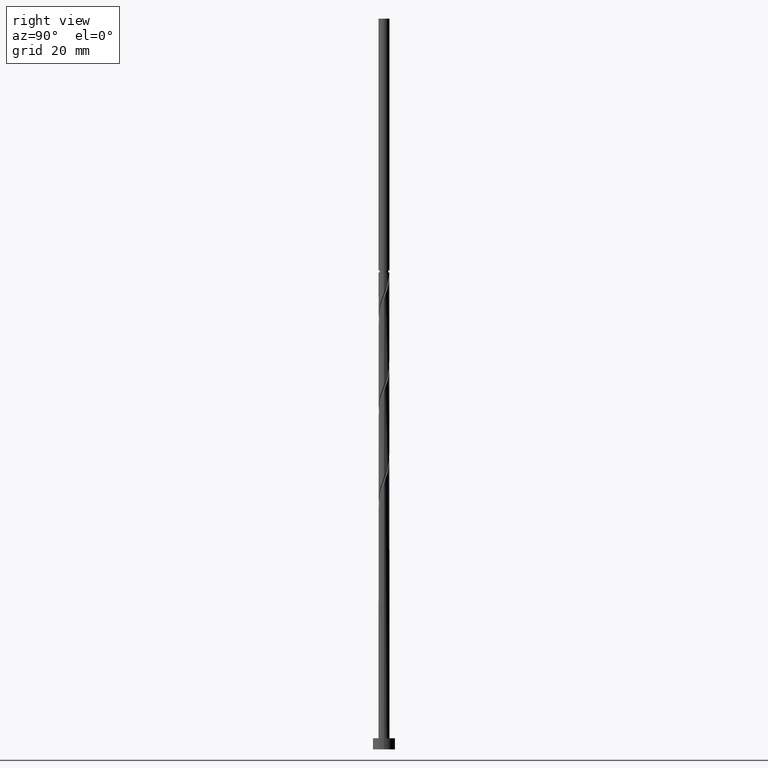
[diagram: clean part render]
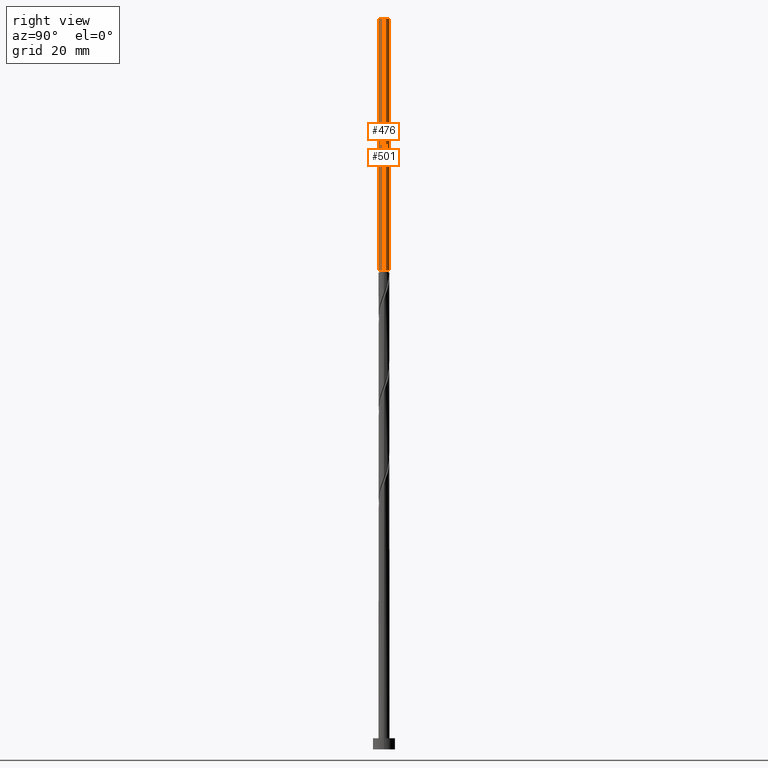
[diagram: same view with one multi-face feature highlighted, each face labeled with its STEP entity id]
A machine part, right view. The highlighted faces form ONE feature: a constant-radius fillet chain: 2 tangent blend faces with common blend radius 1 mm. The faces share edges in the B-rep.
Their STEP definitions:
[1] entity #476 (Cylinder):
#162 = CARTESIAN_POINT ( 'NONE',  ( 0.000000000000000000, 0.000000000000000000, 86.53522803333370916 ) ) ;
#217 = EDGE_CURVE ( 'NONE', #1093, #1099, #1355, .T. ) ;
#226 = CARTESIAN_POINT ( 'NONE',  ( 0.000000000000000000, 0.000000000000000000, 132.0000000000000000 ) ) ;
#274 = ORIENTED_EDGE ( 'NONE', *, *, #1453, .F. ) ;
#315 = ORIENTED_EDGE ( 'NONE', *, *, #217, .F. ) ;
#460 = DIRECTION ( 'NONE',  ( -0.000000000000000000, -0.000000000000000000, -1.000000000000000000 ) ) ;
#476 = ADVANCED_FACE ( 'NONE', ( #806 ), #1277, .T. ) ;
#478 = CARTESIAN_POINT ( 'NONE',  ( -1.000000000000000000, 0.000000000000000000, 132.0000000000000000 ) ) ;
#638 = VERTEX_POINT ( 'NONE', #478 ) ;
#640 = DIRECTION ( 'NONE',  ( 1.000000000000000000, 0.000000000000000000, 0.000000000000000000 ) ) ;
#671 = VECTOR ( 'NONE', #716, 1000.000000000000000 ) ;
#675 = CIRCLE ( 'NONE', #1284, 1.000000000000000000 ) ;
#678 = ORIENTED_EDGE ( 'NONE', *, *, #691, .F. ) ;
#691 = EDGE_CURVE ( 'NONE', #1445, #1093, #1182, .T. ) ;
#696 = DIRECTION ( 'NONE',  ( -0.000000000000000000, -0.000000000000000000, -1.000000000000000000 ) ) ;
#709 = AXIS2_PLACEMENT_3D ( 'NONE', #162, #763, #1423 ) ;
#716 = DIRECTION ( 'NONE',  ( -0.000000000000000000, -0.000000000000000000, -1.000000000000000000 ) ) ;
#724 = CARTESIAN_POINT ( 'NONE',  ( 1.000000000000001332, 1.224646799147354933E-16, 86.53522803333370916 ) ) ;
#763 = DIRECTION ( 'NONE',  ( -0.000000000000000000, -0.000000000000000000, -1.000000000000000000 ) ) ;
#806 = FACE_OUTER_BOUND ( 'NONE', #1339, .T. ) ;
#916 = AXIS2_PLACEMENT_3D ( 'NONE', #226, #696, #1168 ) ;
#922 = ORIENTED_EDGE ( 'NONE', *, *, #1467, .T. ) ;
#989 = CARTESIAN_POINT ( 'NONE',  ( 1.000000000000000000, 1.224646799147353207E-16, 132.0000000000000000 ) ) ;
#1030 = CARTESIAN_POINT ( 'NONE',  ( 0.000000000000000000, 0.000000000000000000, 132.0000000000000000 ) ) ;
#1049 = VECTOR ( 'NONE', #460, 1000.000000000000000 ) ;
#1093 = VERTEX_POINT ( 'NONE', #724 ) ;
#1099 = VERTEX_POINT ( 'NONE', #1420 ) ;
#1107 = LINE ( 'NONE', #1179, #1049 ) ;
#1140 = CARTESIAN_POINT ( 'NONE',  ( 1.000000000000000000, 1.224646799147353207E-16, 132.0000000000000000 ) ) ;
#1168 = DIRECTION ( 'NONE',  ( -1.000000000000000000, 0.000000000000000000, 0.000000000000000000 ) ) ;
#1179 = CARTESIAN_POINT ( 'NONE',  ( -1.000000000000000000, 0.000000000000000000, 132.0000000000000000 ) ) ;
#1182 = LINE ( 'NONE', #989, #671 ) ;
#1277 = CYLINDRICAL_SURFACE ( 'NONE', #916, 1.000000000000000000 ) ;
#1284 = AXIS2_PLACEMENT_3D ( 'NONE', #1030, #1472, #640 ) ;
#1339 = EDGE_LOOP ( 'NONE', ( #678, #274, #922, #315 ) ) ;
#1355 = CIRCLE ( 'NONE', #709, 1.000000000000001332 ) ;
#1420 = CARTESIAN_POINT ( 'NONE',  ( -1.000000000000001332, 0.000000000000000000, 86.53522803333370916 ) ) ;
#1423 = DIRECTION ( 'NONE',  ( -1.000000000000000000, 0.000000000000000000, 0.000000000000000000 ) ) ;
#1445 = VERTEX_POINT ( 'NONE', #1140 ) ;
#1453 = EDGE_CURVE ( 'NONE', #638, #1445, #675, .T. ) ;
#1467 = EDGE_CURVE ( 'NONE', #638, #1099, #1107, .T. ) ;
#1472 = DIRECTION ( 'NONE',  ( 0.000000000000000000, 0.000000000000000000, 1.000000000000000000 ) ) ;
[2] entity #501 (Cylinder):
#74 = DIRECTION ( 'NONE',  ( -0.000000000000000000, -0.000000000000000000, -1.000000000000000000 ) ) ;
#77 = ORIENTED_EDGE ( 'NONE', *, *, #691, .T. ) ;
#272 = DIRECTION ( 'NONE',  ( -1.000000000000000000, 0.000000000000000000, 0.000000000000000000 ) ) ;
#284 = ORIENTED_EDGE ( 'NONE', *, *, #1311, .F. ) ;
#329 = DIRECTION ( 'NONE',  ( 0.000000000000000000, 0.000000000000000000, 1.000000000000000000 ) ) ;
#343 = ORIENTED_EDGE ( 'NONE', *, *, #551, .F. ) ;
#407 = DIRECTION ( 'NONE',  ( -0.000000000000000000, -0.000000000000000000, -1.000000000000000000 ) ) ;
#431 = DIRECTION ( 'NONE',  ( -1.000000000000000000, 0.000000000000000000, 0.000000000000000000 ) ) ;
#460 = DIRECTION ( 'NONE',  ( -0.000000000000000000, -0.000000000000000000, -1.000000000000000000 ) ) ;
#462 = CIRCLE ( 'NONE', #1114, 1.000000000000000000 ) ;
#478 = CARTESIAN_POINT ( 'NONE',  ( -1.000000000000000000, 0.000000000000000000, 132.0000000000000000 ) ) ;
#501 = ADVANCED_FACE ( 'NONE', ( #729 ), #1103, .T. ) ;
#551 = EDGE_CURVE ( 'NONE', #1445, #638, #462, .T. ) ;
#638 = VERTEX_POINT ( 'NONE', #478 ) ;
#671 = VECTOR ( 'NONE', #716, 1000.000000000000000 ) ;
#685 = DIRECTION ( 'NONE',  ( 1.000000000000000000, 0.000000000000000000, 0.000000000000000000 ) ) ;
#691 = EDGE_CURVE ( 'NONE', #1445, #1093, #1182, .T. ) ;
#716 = DIRECTION ( 'NONE',  ( -0.000000000000000000, -0.000000000000000000, -1.000000000000000000 ) ) ;
#724 = CARTESIAN_POINT ( 'NONE',  ( 1.000000000000001332, 1.224646799147354933E-16, 86.53522803333370916 ) ) ;
#729 = FACE_OUTER_BOUND ( 'NONE', #990, .T. ) ;
#756 = CARTESIAN_POINT ( 'NONE',  ( 0.000000000000000000, 0.000000000000000000, 132.0000000000000000 ) ) ;
#877 = CARTESIAN_POINT ( 'NONE',  ( 0.000000000000000000, 0.000000000000000000, 86.53522803333370916 ) ) ;
#989 = CARTESIAN_POINT ( 'NONE',  ( 1.000000000000000000, 1.224646799147353207E-16, 132.0000000000000000 ) ) ;
#990 = EDGE_LOOP ( 'NONE', ( #343, #77, #284, #1457 ) ) ;
#1049 = VECTOR ( 'NONE', #460, 1000.000000000000000 ) ;
#1093 = VERTEX_POINT ( 'NONE', #724 ) ;
#1099 = VERTEX_POINT ( 'NONE', #1420 ) ;
#1103 = CYLINDRICAL_SURFACE ( 'NONE', #1231, 1.000000000000000000 ) ;
#1107 = LINE ( 'NONE', #1179, #1049 ) ;
#1114 = AXIS2_PLACEMENT_3D ( 'NONE', #1137, #329, #685 ) ;
#1137 = CARTESIAN_POINT ( 'NONE',  ( 0.000000000000000000, 0.000000000000000000, 132.0000000000000000 ) ) ;
#1140 = CARTESIAN_POINT ( 'NONE',  ( 1.000000000000000000, 1.224646799147353207E-16, 132.0000000000000000 ) ) ;
#1166 = AXIS2_PLACEMENT_3D ( 'NONE', #877, #74, #431 ) ;
#1179 = CARTESIAN_POINT ( 'NONE',  ( -1.000000000000000000, 0.000000000000000000, 132.0000000000000000 ) ) ;
#1182 = LINE ( 'NONE', #989, #671 ) ;
#1231 = AXIS2_PLACEMENT_3D ( 'NONE', #756, #407, #272 ) ;
#1302 = CIRCLE ( 'NONE', #1166, 1.000000000000001332 ) ;
#1311 = EDGE_CURVE ( 'NONE', #1099, #1093, #1302, .T. ) ;
#1420 = CARTESIAN_POINT ( 'NONE',  ( -1.000000000000001332, 0.000000000000000000, 86.53522803333370916 ) ) ;
#1445 = VERTEX_POINT ( 'NONE', #1140 ) ;
#1457 = ORIENTED_EDGE ( 'NONE', *, *, #1467, .F. ) ;
#1467 = EDGE_CURVE ( 'NONE', #638, #1099, #1107, .T. ) ;